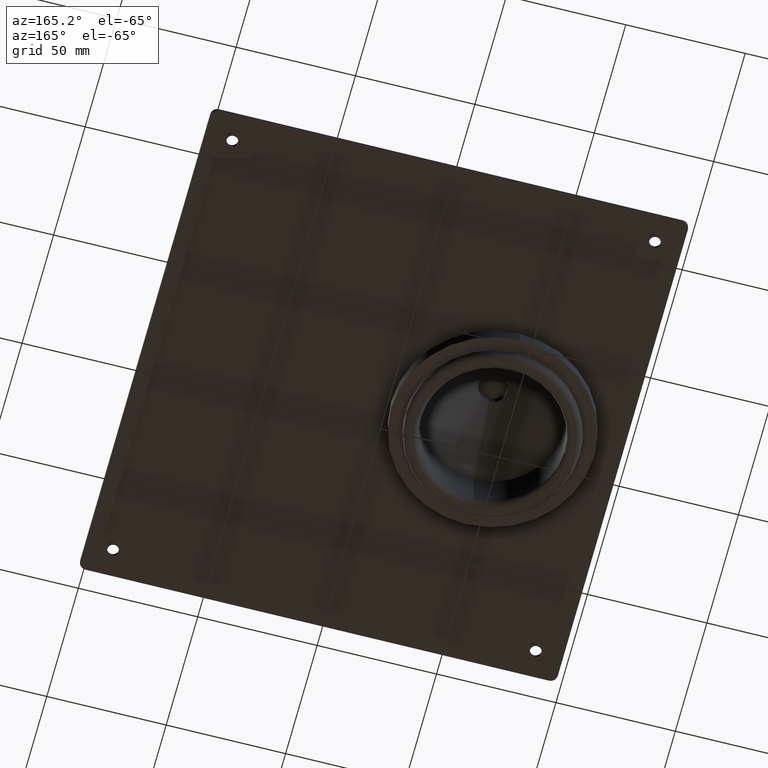
[diagram: clean part render]
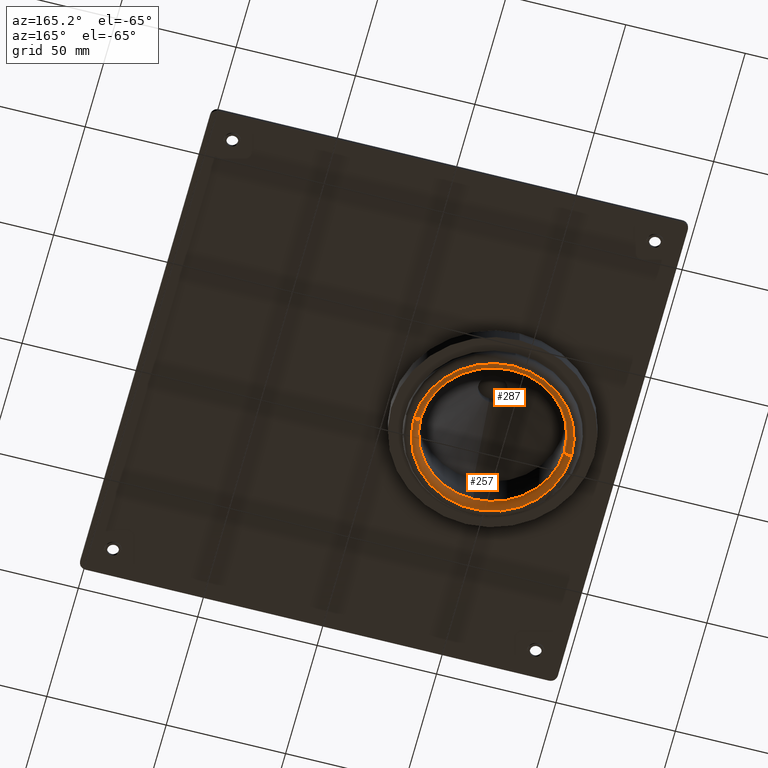
[diagram: same view with one multi-face feature highlighted, each face labeled with its STEP entity id]
A machine part, auxiliary view. The highlighted faces form ONE feature: a constant-radius fillet chain: 2 tangent blend faces with common blend radius 3 mm. The faces share edges in the B-rep.
Their STEP definitions:
[1] entity #257 (Torus):
#257=ADVANCED_FACE('',(#524),#525,.T.);
#524=FACE_OUTER_BOUND('',#810,.T.);
#525=TOROIDAL_SURFACE('',#811,33.0,3.0);
#810=EDGE_LOOP('',(#1353,#1354,#1355,#1356,#1357));
#811=AXIS2_PLACEMENT_3D('',#1358,#1359,#1360);
#1353=ORIENTED_EDGE('',*,*,#1810,.F.);
#1354=ORIENTED_EDGE('',*,*,#1811,.T.);
#1355=ORIENTED_EDGE('',*,*,#1812,.T.);
#1356=ORIENTED_EDGE('',*,*,#1813,.F.);
#1357=ORIENTED_EDGE('',*,*,#1814,.F.);
#1358=CARTESIAN_POINT('',(54.5,106.0,3.0));
#1359=DIRECTION('',(0.0,0.0,1.0));
#1360=DIRECTION('',(-1.0,0.0,0.0));
#1810=EDGE_CURVE('',#2180,#2181,#2182,.T.);
#1811=EDGE_CURVE('',#2180,#2183,#2184,.T.);
#1812=EDGE_CURVE('',#2183,#2185,#2186,.T.);
#1813=EDGE_CURVE('',#2187,#2185,#2188,.T.);
#1814=EDGE_CURVE('',#2181,#2187,#2189,.T.);
#2180=VERTEX_POINT('',#2622);
#2181=VERTEX_POINT('',#2623);
#2182=CIRCLE('',#2624,3.0);
#2183=VERTEX_POINT('',#2625);
#2184=CIRCLE('',#2626,30.0);
#2185=VERTEX_POINT('',#2627);
#2186=CIRCLE('',#2628,30.0);
#2187=VERTEX_POINT('',#2629);
#2188=CIRCLE('',#2630,3.0);
#2189=CIRCLE('',#2631,32.9999999998691);
#2622=CARTESIAN_POINT('',(24.5,106.0,3.0));
#2623=CARTESIAN_POINT('',(21.5000000001309,106.0,0.0));
#2624=AXIS2_PLACEMENT_3D('',#3043,#3044,#3045);
#2625=CARTESIAN_POINT('',(54.5,76.0,3.0));
#2626=AXIS2_PLACEMENT_3D('',#3046,#3047,#3048);
#2627=CARTESIAN_POINT('',(84.5,106.0,3.0));
#2628=AXIS2_PLACEMENT_3D('',#3049,#3050,#3051);
#2629=CARTESIAN_POINT('',(87.4999999998691,106.0,0.0));
#2630=AXIS2_PLACEMENT_3D('',#3052,#3053,#3054);
#2631=AXIS2_PLACEMENT_3D('',#3055,#3056,#3057);
#3043=CARTESIAN_POINT('',(21.5,106.0,3.0));
#3044=DIRECTION('',(-0.0,1.0,0.0));
#3045=DIRECTION('',(-1.0,-0.0,0.0));
#3046=CARTESIAN_POINT('',(54.5,106.0,3.0));
#3047=DIRECTION('',(0.0,-0.0,1.0));
#3048=DIRECTION('',(0.0,1.0,0.0));
#3049=CARTESIAN_POINT('',(54.5,106.0,3.0));
#3050=DIRECTION('',(0.0,-0.0,1.0));
#3051=DIRECTION('',(0.0,1.0,0.0));
#3052=CARTESIAN_POINT('',(87.5,106.0,3.0));
#3053=DIRECTION('',(-0.0,1.0,0.0));
#3054=DIRECTION('',(1.0,0.0,0.0));
#3055=CARTESIAN_POINT('',(54.5,106.0,0.0));
#3056=DIRECTION('',(0.0,-0.0,1.0));
#3057=DIRECTION('',(0.0,1.0,0.0));
[2] entity #287 (Torus):
#287=ADVANCED_FACE('',(#571),#572,.T.);
#571=FACE_OUTER_BOUND('',#857,.T.);
#572=TOROIDAL_SURFACE('',#858,33.0,3.0);
#857=EDGE_LOOP('',(#1472,#1473,#1474,#1475,#1476,#1477));
#858=AXIS2_PLACEMENT_3D('',#1478,#1479,#1480);
#1472=ORIENTED_EDGE('',*,*,#1810,.T.);
#1473=ORIENTED_EDGE('',*,*,#1857,.F.);
#1474=ORIENTED_EDGE('',*,*,#1858,.F.);
#1475=ORIENTED_EDGE('',*,*,#1813,.T.);
#1476=ORIENTED_EDGE('',*,*,#1817,.T.);
#1477=ORIENTED_EDGE('',*,*,#1855,.T.);
#1478=CARTESIAN_POINT('',(54.5,106.0,3.0));
#1479=DIRECTION('',(0.0,0.0,1.0));
#1480=DIRECTION('',(-1.0,0.0,0.0));
#1810=EDGE_CURVE('',#2180,#2181,#2182,.T.);
#1813=EDGE_CURVE('',#2187,#2185,#2188,.T.);
#1817=EDGE_CURVE('',#2185,#2191,#2194,.T.);
#1855=EDGE_CURVE('',#2191,#2180,#2245,.T.);
#1857=EDGE_CURVE('',#2247,#2181,#2248,.T.);
#1858=EDGE_CURVE('',#2187,#2247,#2249,.T.);
#2180=VERTEX_POINT('',#2622);
#2181=VERTEX_POINT('',#2623);
#2182=CIRCLE('',#2624,3.0);
#2185=VERTEX_POINT('',#2627);
#2187=VERTEX_POINT('',#2629);
#2188=CIRCLE('',#2630,3.0);
#2191=VERTEX_POINT('',#2633);
#2194=CIRCLE('',#2637,30.0);
#2245=CIRCLE('',#2697,30.0);
#2247=VERTEX_POINT('',#2699);
#2248=CIRCLE('',#2700,32.9999999998691);
#2249=CIRCLE('',#2701,32.9999999998691);
#2622=CARTESIAN_POINT('',(24.5,106.0,3.0));
#2623=CARTESIAN_POINT('',(21.5000000001309,106.0,0.0));
#2624=AXIS2_PLACEMENT_3D('',#3043,#3044,#3045);
#2627=CARTESIAN_POINT('',(84.5,106.0,3.0));
#2629=CARTESIAN_POINT('',(87.4999999998691,106.0,0.0));
#2630=AXIS2_PLACEMENT_3D('',#3052,#3053,#3054);
#2633=CARTESIAN_POINT('',(54.5,136.0,3.0));
#2637=AXIS2_PLACEMENT_3D('',#3059,#3060,#3061);
#2697=AXIS2_PLACEMENT_3D('',#3116,#3117,#3118);
#2699=CARTESIAN_POINT('',(54.5,138.999999999869,0.0));
#2700=AXIS2_PLACEMENT_3D('',#3119,#3120,#3121);
#2701=AXIS2_PLACEMENT_3D('',#3122,#3123,#3124);
#3043=CARTESIAN_POINT('',(21.5,106.0,3.0));
#3044=DIRECTION('',(-0.0,1.0,0.0));
#3045=DIRECTION('',(-1.0,-0.0,0.0));
#3052=CARTESIAN_POINT('',(87.5,106.0,3.0));
#3053=DIRECTION('',(-0.0,1.0,0.0));
#3054=DIRECTION('',(1.0,0.0,0.0));
#3059=CARTESIAN_POINT('',(54.5,106.0,3.0));
#3060=DIRECTION('',(0.0,-0.0,1.0));
#3061=DIRECTION('',(0.0,1.0,0.0));
#3116=CARTESIAN_POINT('',(54.5,106.0,3.0));
#3117=DIRECTION('',(0.0,-0.0,1.0));
#3118=DIRECTION('',(0.0,1.0,0.0));
#3119=CARTESIAN_POINT('',(54.5,106.0,0.0));
#3120=DIRECTION('',(0.0,-0.0,1.0));
#3121=DIRECTION('',(0.0,1.0,0.0));
#3122=CARTESIAN_POINT('',(54.5,106.0,0.0));
#3123=DIRECTION('',(0.0,-0.0,1.0));
#3124=DIRECTION('',(0.0,1.0,0.0));